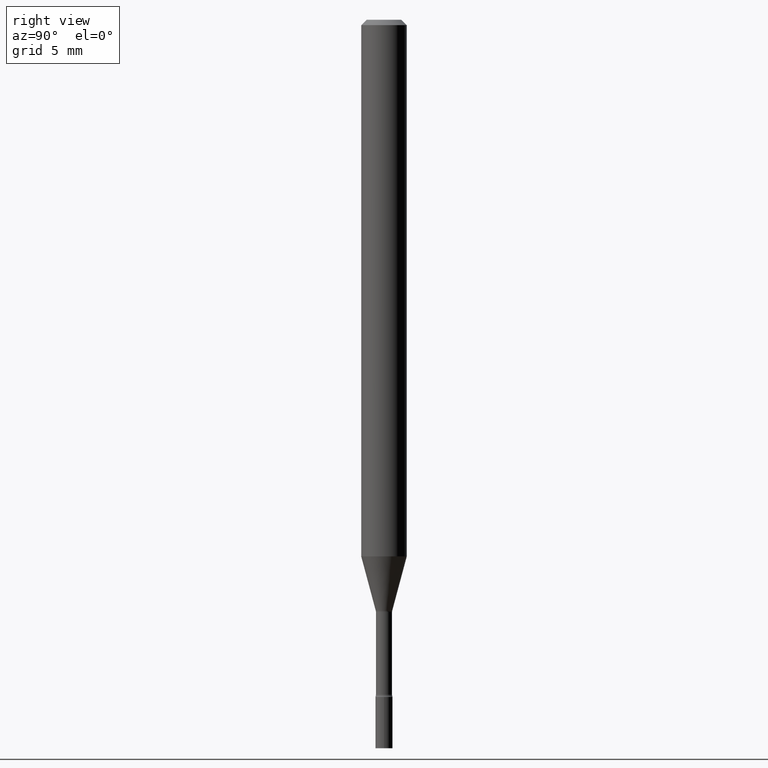
[diagram: clean part render]
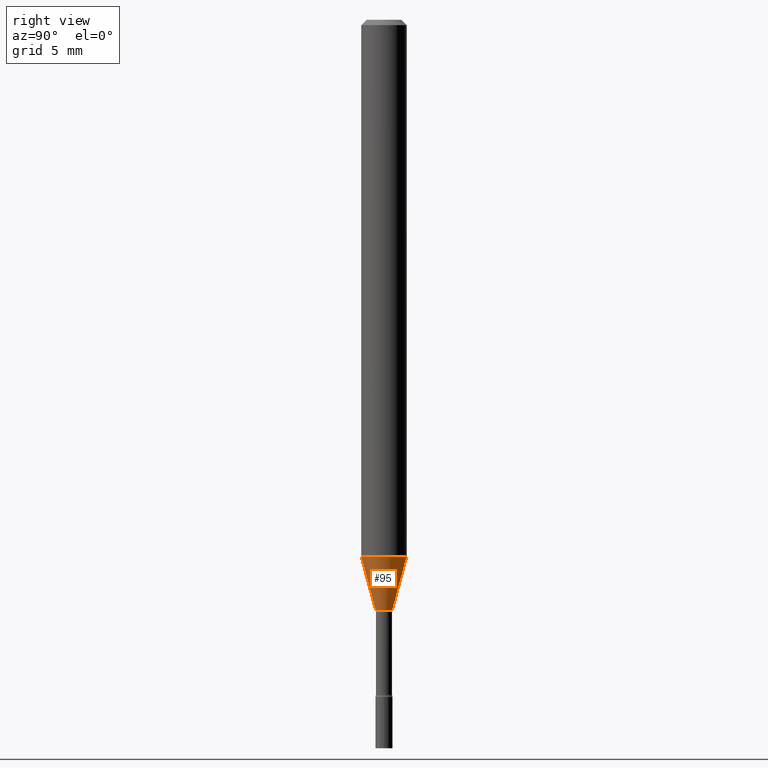
[diagram: same view with one face highlighted and labeled with its STEP entity id]
A machine part, right view. The second image highlights one B-rep face of the part: STEP entity #95.
In plain terms, the highlighted conical surface has half-angle 15 deg.
Its self-contained STEP definition (entity closure, byte-faithful):
#6 = CARTESIAN_POINT ( 'NONE',  ( -4.364351673553557762E-16, -0.06250000000000517641, -1.473225147374217503 ) ) ;
#11 = LINE ( 'NONE', #329, #295 ) ;
#18 = VECTOR ( 'NONE', #59, 39.37007874015749564 ) ;
#23 = LINE ( 'NONE', #142, #18 ) ;
#24 = FACE_OUTER_BOUND ( 'NONE', #310, .T. ) ;
#59 = DIRECTION ( 'NONE',  ( -1.807323732225329350E-15, -0.2588190451025180194, 0.9659258262890689783 ) ) ;
#66 = ORIENTED_EDGE ( 'NONE', *, *, #138, .F. ) ;
#77 = DIRECTION ( 'NONE',  ( -6.982962677686265922E-15, -1.000000000000000000, 0.000000000000000000 ) ) ;
#95 = ADVANCED_FACE ( 'NONE', ( #24 ), #376, .T. ) ;
#111 = AXIS2_PLACEMENT_3D ( 'NONE', #443, #244, #400 ) ;
#138 = EDGE_CURVE ( 'NONE', #237, #352, #397, .T. ) ;
#142 = CARTESIAN_POINT ( 'NONE',  ( -1.578925554262733618E-16, -0.02261111260566964209, -1.622092501787272933 ) ) ;
#166 = AXIS2_PLACEMENT_3D ( 'NONE', #185, #460, #425 ) ;
#171 = DIRECTION ( 'NONE',  ( 1.839019923739599526E-15, 0.2588190451025248473, 0.9659258262890670910 ) ) ;
#182 = CIRCLE ( 'NONE', #166, 0.02261111260566397996 ) ;
#185 = CARTESIAN_POINT ( 'NONE',  ( 3.966792487341526174E-29, -5.663482968149508762E-15, -1.622092501787272933 ) ) ;
#237 = VERTEX_POINT ( 'NONE', #6 ) ;
#244 = DIRECTION ( 'NONE',  ( -2.445478591985838029E-29, 3.491467325019567696E-15, 1.000000000000000000 ) ) ;
#266 = ORIENTED_EDGE ( 'NONE', *, *, #302, .T. ) ;
#278 = ORIENTED_EDGE ( 'NONE', *, *, #426, .T. ) ;
#282 = CARTESIAN_POINT ( 'NONE',  ( 3.966792487341526174E-29, -5.663482968149508762E-15, -1.622092501787272933 ) ) ;
#295 = VECTOR ( 'NONE', #171, 39.37007874015748143 ) ;
#302 = EDGE_CURVE ( 'NONE', #431, #352, #11, .T. ) ;
#310 = EDGE_LOOP ( 'NONE', ( #278, #266, #66, #317 ) ) ;
#317 = ORIENTED_EDGE ( 'NONE', *, *, #447, .F. ) ;
#329 = CARTESIAN_POINT ( 'NONE',  ( 1.606616180941213573E-16, 0.02261111260565831435, -1.622092501787272933 ) ) ;
#352 = VERTEX_POINT ( 'NONE', #372 ) ;
#372 = CARTESIAN_POINT ( 'NONE',  ( 4.440892098500984107E-16, 0.06249999999999482359, -1.473225147374217947 ) ) ;
#376 = CONICAL_SURFACE ( 'NONE', #504, 0.02261111260566397996, 0.2617993877991501850 ) ;
#397 = CIRCLE ( 'NONE', #111, 0.06250000000000000000 ) ;
#400 = DIRECTION ( 'NONE',  ( -6.982962677686265922E-15, -1.000000000000000000, 4.370956789862821150E-15 ) ) ;
#425 = DIRECTION ( 'NONE',  ( -6.982962677686265922E-15, -1.000000000000000000, 0.000000000000000000 ) ) ;
#426 = EDGE_CURVE ( 'NONE', #499, #431, #182, .T. ) ;
#431 = VERTEX_POINT ( 'NONE', #507 ) ;
#437 = DIRECTION ( 'NONE',  ( -2.445478591985838029E-29, 3.491467325019567696E-15, 1.000000000000000000 ) ) ;
#443 = CARTESIAN_POINT ( 'NONE',  ( 3.602740559078830518E-29, -5.143717464454219042E-15, -1.473225147374217725 ) ) ;
#447 = EDGE_CURVE ( 'NONE', #499, #237, #23, .T. ) ;
#460 = DIRECTION ( 'NONE',  ( -2.445478591985838029E-29, 3.491467325019567696E-15, 1.000000000000000000 ) ) ;
#499 = VERTEX_POINT ( 'NONE', #503 ) ;
#503 = CARTESIAN_POINT ( 'NONE',  ( -1.578925554262733618E-16, -0.02261111260566964209, -1.622092501787272933 ) ) ;
#504 = AXIS2_PLACEMENT_3D ( 'NONE', #282, #437, #77 ) ;
#507 = CARTESIAN_POINT ( 'NONE',  ( 3.023754139721100812E-16, 0.02261111260565831782, -1.622092501787272933 ) ) ;